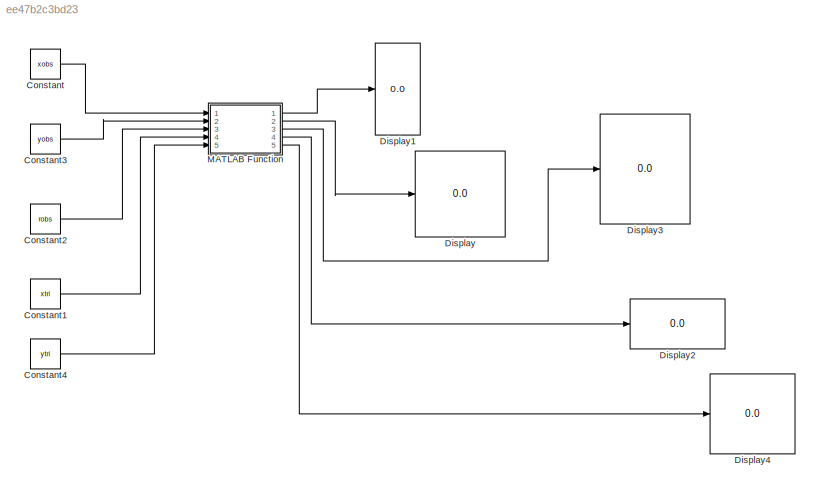
MODEL slx_ee47b2c3bd23
KIND model
CONFIG AbsTol = auto
CONFIG EnableMultiTasking = off
CONFIG FixedStep = auto
CONFIG MaxStep = auto
CONFIG MinStep = auto
CONFIG RelTol = 1e-3
CONFIG SampleTimeConstraint = Unconstrained
CONFIG Solver = VariableStepAuto
CONFIG SolverName = VariableStepAuto
CONFIG StartTime = 0.0
CONFIG StopTime = 10.0
BLOCK [Constant] Constant
  Value = xobs
BLOCK [Constant] Constant1
  Value = xtri
BLOCK [Constant] Constant2
  Value = robs
BLOCK [Constant] Constant3
  Value = yobs
BLOCK [Constant] Constant4
  Value = ytri
BLOCK [Display] Display
  Decimation = 1
  Ports = [1]
BLOCK [Display] Display1
  Decimation = 1
  Ports = [1]
BLOCK [Display] Display2
  Decimation = 1
  Ports = [1]
BLOCK [Display] Display3
  Decimation = 1
  Ports = [1]
BLOCK [Display] Display4
  Decimation = 1
  Ports = [1]
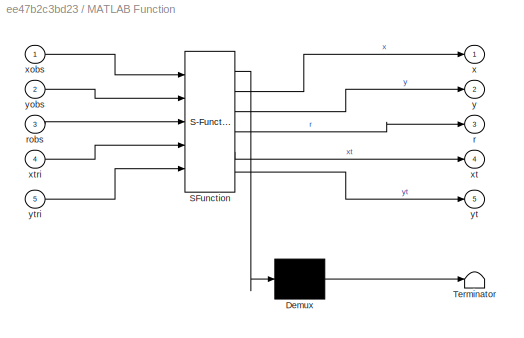
BLOCK [SubSystem] MATLAB Function
  ErrorFcn = Stateflow.Translate.translate
  PermitHierarchicalResolution = ExplicitOnly
  Ports = [5, 5]
  RequestExecContextInheritance = off
  SFBlockType = MATLAB Function
  TreatAsAtomicUnit = on
BLOCK [Demux] MATLAB Function/ Demux 
  Outputs = 1
  Ports = [1, 1]
BLOCK [S-Function] MATLAB Function/ SFunction 
  EnableBusSupport = on
  FunctionName = sf_sfun
  PortCounts = [5 6]
  Ports = [5, 6]
  SFcnIsStateOwnerBlock = off
  SFunctionDeploymentMode = off
  Tag = Stateflow S-Function 2
BLOCK [Terminator] MATLAB Function/ Terminator 
BLOCK [Outport] MATLAB Function/r
  Port = 3
BLOCK [Inport] MATLAB Function/robs
  Port = 3
BLOCK [Outport] MATLAB Function/x
BLOCK [Inport] MATLAB Function/xobs
BLOCK [Outport] MATLAB Function/xt
  Port = 4
BLOCK [Inport] MATLAB Function/xtri
  Port = 4
BLOCK [Outport] MATLAB Function/y
  Port = 2
BLOCK [Inport] MATLAB Function/yobs
  Port = 2
BLOCK [Outport] MATLAB Function/yt
  Port = 5
BLOCK [Inport] MATLAB Function/ytri
  Port = 5
LINE Constant1:1 -> MATLAB Function:4
LINE Constant2:1 -> MATLAB Function:3
LINE Constant3:1 -> MATLAB Function:2
LINE Constant4:1 -> MATLAB Function:5
LINE Constant:1 -> MATLAB Function:1
LINE MATLAB Function:1 -> Display1:1
LINE MATLAB Function:2 -> Display:1
LINE MATLAB Function:3 -> Display3:1
LINE MATLAB Function:4 -> Display2:1
LINE MATLAB Function:5 -> Display4:1
CHART MATLAB Function states=1 transitions=1
  STATE_LABEL 'eML_blk_kernel()'
  STATE_LABEL "SCRIPT:\nfunction [x,y,r,xt,yt] = fcn(xobs,yobs,robs,xtri,ytri)\n\n    x= xobs;\n    y= yobs;\n    r= robs;\n    xt= xtri;\n    yt= ytri;\n    a=[1,1 ,1];\n    T=[1 ,0,0;0,1,0;0,0,1];\n\ntheta=linspace(0,2*pi,100);\n    for k=1:numel(x)\n        plot(x(k)+r(k)*cos(theta),y(k)+r(k)*sin(theta),'ro');\n        hold on;\n    end\n    \n    for k=1:numel(xt)\n        if(k==3)\n             theta1=transpose(linspace(xt(k)...<+385ch>"
CHART  states=0 transitions=0
